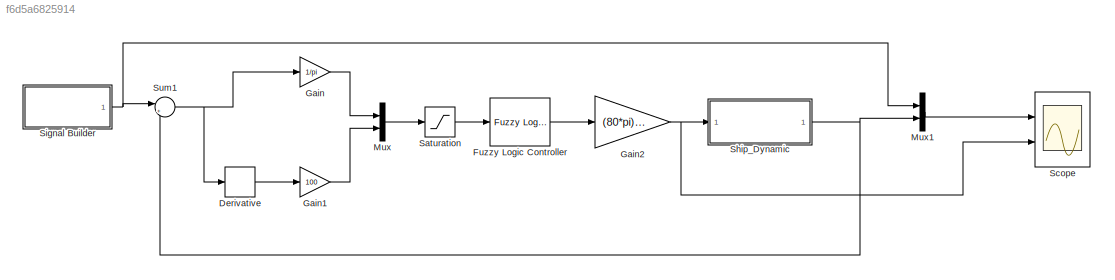
MODEL slx_f6d5a6825914
KIND model
CONFIG AbsTol = auto
CONFIG FixedStep = 0.01
CONFIG MaxStep = auto
CONFIG MinStep = auto
CONFIG RelTol = 1e-3
CONFIG SampleTimeConstraint = Unconstrained
CONFIG Solver = ode5
CONFIG SolverMode = Auto
CONFIG SolverName = ode5
CONFIG StartTime = 0.0
CONFIG StopTime = 4000.0
BLOCK [Derivative] Derivative
BLOCK [Reference] Fuzzy Logic Controller  REF=fuzblock/Fuzzy Logic   (lib defined in mdl_858b3b3e7478)
Controller
  Ports = [1, 1]
  SourceBlock = fuzblock/Fuzzy Logic \nController
  SourceType = FIS
BLOCK [Gain] Gain
  Gain = 1/pi
  OutDataTypeStr = Inherit: Inherit via internal rule
  ParamDataTypeStr = Inherit: Inherit via internal rule
  SaturateOnIntegerOverflow = off
BLOCK [Gain] Gain1
  Gain = 100
  OutDataTypeStr = Inherit: Inherit via internal rule
  ParamDataTypeStr = Inherit: Inherit via internal rule
  SaturateOnIntegerOverflow = off
BLOCK [Gain] Gain2
  Gain = (80*pi)/100
  OutDataTypeStr = Inherit: Inherit via internal rule
  ParamDataTypeStr = Inherit: Inherit via internal rule
  SaturateOnIntegerOverflow = off
BLOCK [Mux] Mux
  DisplayOption = bar
  Inputs = 2
  Ports = [2, 1]
BLOCK [Mux] Mux1
  DisplayOption = bar
  Inputs = 2
  Ports = [2, 1]
BLOCK [Saturate] Saturation
  InputPortMap = u0
  LowerLimit = -1
  Ports = [1, 1]
  UpperLimit = 1
BLOCK [Scope] Scope
  NumInputPorts = 2
  Ports = [2]
  ScopeSpecificationString = C++SS(StrPVP('SaveName','ScopeData'),StrPVP('LimitDataPoints','on'),StrPVP('DataFormat','Array'),StrPVP('Decimation','1'),StrPVP('BlockParamSampleInput','off'))
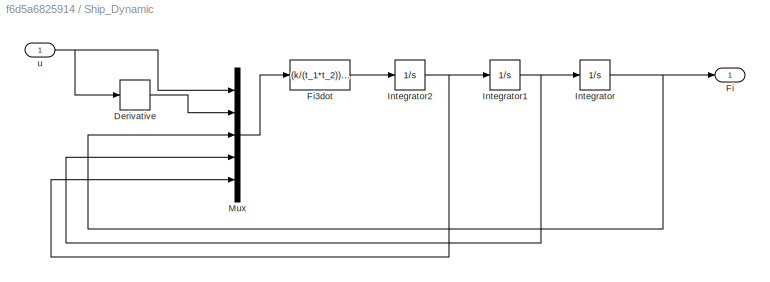
BLOCK [SubSystem] Ship_Dynamic
  Ports = [1, 1]
  RequestExecContextInheritance = off
  TreatAsAtomicUnit = on
  Variant = off
BLOCK [Derivative] Ship_Dynamic/Derivative
BLOCK [Outport] Ship_Dynamic/Fi
  IconDisplay = Port number
BLOCK [Fcn] Ship_Dynamic/Fi3dot
  Expr = (k/(t_1*t_2))*(t_3*u(2)+u(1))-(1/(t_1*t_2))*(((u(4))^3)+u(4))-((1/t_1)+(1/t_2))*u(5)
BLOCK [Integrator] Ship_Dynamic/Integrator
  Ports = [1, 1]
BLOCK [Integrator] Ship_Dynamic/Integrator1
  Ports = [1, 1]
BLOCK [Integrator] Ship_Dynamic/Integrator2
  Ports = [1, 1]
BLOCK [Mux] Ship_Dynamic/Mux
  DisplayOption = bar
  Inputs = 5
  Ports = [5, 1]
BLOCK [Inport] Ship_Dynamic/u
  IconDisplay = Port number
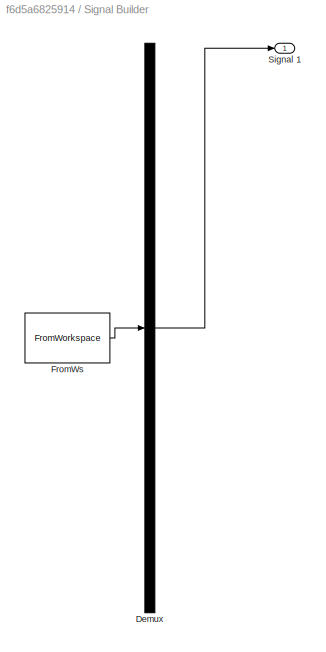
BLOCK [SubSystem] Signal Builder
  ClipboardFcn = sigbuilder_block('clipboard');
  CloseFcn = sigbuilder_block('close');
  ContinueFcn = sigbuilder_block('continue');
  CopyFcn = sigbuilder_block('copy');
  DeleteFcn = sigbuilder_block('delete');
  LoadFcn = sigbuilder_block('load');
  MaskHideContents = on
  ModelCloseFcn = sigbuilder_block('modelClose');
  NameChangeFcn = sigbuilder_block('namechange');
  OpenFcn = sigbuilder_block('open',[437.6 199.2 550.4 400 ]);
  PauseFcn = sigbuilder_block('pause');
  Ports = [0, 1]
  PreSaveFcn = sigbuilder_block('preSave');
  RequestExecContextInheritance = off
  StartFcn = sigbuilder_block('start');
  StopFcn = sigbuilder_block('stop');
  Tag = STV Subsys
  Variant = off
BLOCK [Demux] Signal Builder/Demux
  Outputs = 1
  Ports = [1, 1]
  Tag = STV Demux
BLOCK [FromWorkspace] Signal Builder/FromWs
  SampleTime = 0
  Tag = STV FromWs
  VariableName = tuvar
  ZeroCross = on
BLOCK [Outport] Signal Builder/Signal 1
  IconDisplay = Port number
  Tag = STV Outport
BLOCK [Sum] Sum1
  IconShape = round
  InputSameDT = off
  Inputs = |+-
  OutDataTypeStr = Inherit: Inherit via internal rule
  Ports = [2, 1]
  SaturateOnIntegerOverflow = off
LINE Derivative:1 -> Gain1:1
LINE Fuzzy Logic Controller:1 -> Gain2:1
LINE Gain1:1 -> Mux:2
NET Gain2:1 -> Scope:2, Ship_Dynamic:1
LINE Gain:1 -> Mux:1
LINE Mux1:1 -> Scope:1
LINE Mux:1 -> Saturation:1
LINE Saturation:1 -> Fuzzy Logic Controller:1
LINE Ship_Dynamic/Derivative:1 -> Ship_Dynamic/Mux:2
LINE Ship_Dynamic/Fi3dot:1 -> Ship_Dynamic/Integrator2:1
NET Ship_Dynamic/Integrator1:1 -> Ship_Dynamic/Integrator:1, Ship_Dynamic/Mux:4
NET Ship_Dynamic/Integrator2:1 -> Ship_Dynamic/Integrator1:1, Ship_Dynamic/Mux:5
NET Ship_Dynamic/Integrator:1 -> Ship_Dynamic/Fi:1, Ship_Dynamic/Mux:3
LINE Ship_Dynamic/Mux:1 -> Ship_Dynamic/Fi3dot:1
NET Ship_Dynamic/u:1 -> Ship_Dynamic/Derivative:1, Ship_Dynamic/Mux:1
NET Ship_Dynamic:1 -> Mux1:2, Sum1:2
NET Signal Builder:1 -> Mux1:1, Sum1:1
NET Sum1:1 -> Derivative:1, Gain:1
note: NET lines group one-source signal fan-out (src -> all destinations, sorted); 1:1 wires keep LINE
